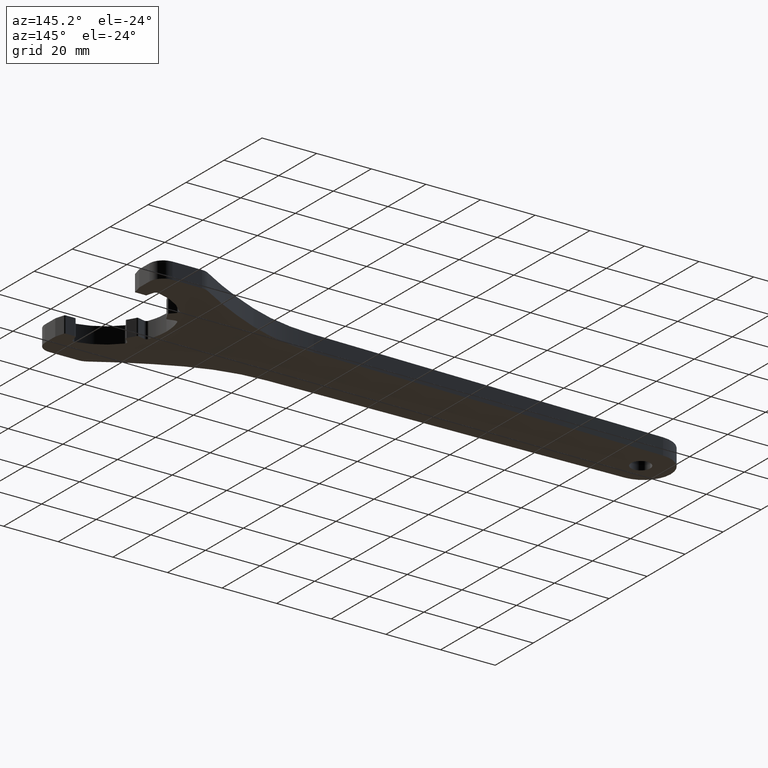
[diagram: clean part render]
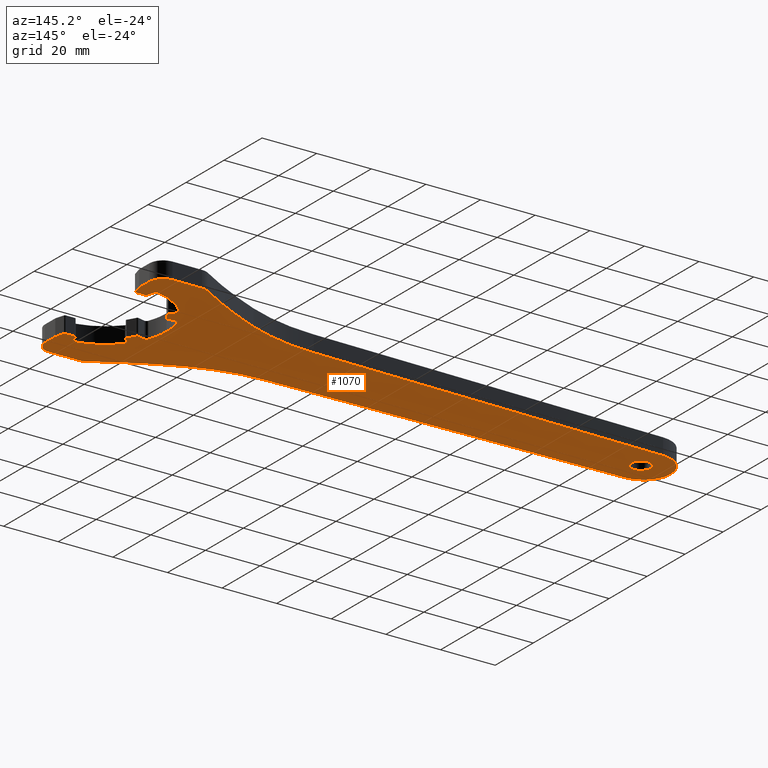
[diagram: same view with one face highlighted and labeled with its STEP entity id]
A machine part, auxiliary view. The second image highlights one B-rep face of the part: STEP entity #1070.
In plain terms, the highlighted planar face has unit normal (0, 0, 1).
Its self-contained STEP definition (entity closure, byte-faithful):
#5 = VERTEX_POINT ( 'NONE', #345 ) ;
#10 = CARTESIAN_POINT ( 'NONE',  ( -16.85463822303032800, -7.806910254947470500, -1.084202172485504400E-016 ) ) ;
#12 = FACE_OUTER_BOUND ( 'NONE', #1345, .T. ) ;
#13 = DIRECTION ( 'NONE',  ( -1.000000000000000000, -1.776356839400250500E-015, 0.0000000000000000000 ) ) ;
#14 = CARTESIAN_POINT ( 'NONE',  ( -17.41706044743177300, 7.573947341115692600, -1.084202172485504400E-016 ) ) ;
#16 = DIRECTION ( 'NONE',  ( -1.000000000000000000, 0.0000000000000000000, 0.0000000000000000000 ) ) ;
#22 = DIRECTION ( 'NONE',  ( -1.000000000000000000, 2.081668171172168900E-015, 0.0000000000000000000 ) ) ;
#29 = EDGE_CURVE ( 'NONE', #921, #215, #1693, .T. ) ;
#30 = ORIENTED_EDGE ( 'NONE', *, *, #222, .F. ) ;
#32 = AXIS2_PLACEMENT_3D ( 'NONE', #360, #251, #1190 ) ;
#34 = ORIENTED_EDGE ( 'NONE', *, *, #1051, .F. ) ;
#36 = ORIENTED_EDGE ( 'NONE', *, *, #29, .T. ) ;
#47 = VERTEX_POINT ( 'NONE', #505 ) ;
#48 = CARTESIAN_POINT ( 'NONE',  ( -15.41850356263618400, -31.72609176872342800, 0.0000000000000000000 ) ) ;
#61 = DIRECTION ( 'NONE',  ( 0.0000000000000000000, 0.0000000000000000000, -1.000000000000000000 ) ) ;
#62 = VERTEX_POINT ( 'NONE', #772 ) ;
#64 = LINE ( 'NONE', #158, #1060 ) ;
#73 = EDGE_CURVE ( 'NONE', #388, #825, #570, .T. ) ;
#77 = VERTEX_POINT ( 'NONE', #1583 ) ;
#79 = DIRECTION ( 'NONE',  ( -1.000000000000000000, 0.0000000000000000000, 0.0000000000000000000 ) ) ;
#80 = VECTOR ( 'NONE', #899, 1000.000000000000200 ) ;
#88 = AXIS2_PLACEMENT_3D ( 'NONE', #1068, #257, #1195 ) ;
#90 = CARTESIAN_POINT ( 'NONE',  ( -3.753369252000000600, -20.99335728599999800, 0.0000000000000000000 ) ) ;
#93 = LINE ( 'NONE', #779, #407 ) ;
#94 = DIRECTION ( 'NONE',  ( -1.000000000000000000, 6.938893903907229400E-016, 0.0000000000000000000 ) ) ;
#102 = DIRECTION ( 'NONE',  ( 0.0000000000000000000, 1.000000000000000000, 0.0000000000000000000 ) ) ;
#103 = VERTEX_POINT ( 'NONE', #1590 ) ;
#107 = CARTESIAN_POINT ( 'NONE',  ( -20.99797142334255200, -7.585942386358816200, 0.0000000000000000000 ) ) ;
#113 = AXIS2_PLACEMENT_3D ( 'NONE', #1649, #838, #22 ) ;
#117 = DIRECTION ( 'NONE',  ( 0.0000000000000000000, 0.0000000000000000000, -1.000000000000000000 ) ) ;
#122 = DIRECTION ( 'NONE',  ( 0.9998158079562803300, -0.01919245061815623800, 0.0000000000000000000 ) ) ;
#123 = DIRECTION ( 'NONE',  ( -1.000000000000000000, 0.0000000000000000000, 0.0000000000000000000 ) ) ;
#125 = CARTESIAN_POINT ( 'NONE',  ( -2.787443425350983400, 21.25217633103453000, 0.0000000000000000000 ) ) ;
#126 = LINE ( 'NONE', #1165, #80 ) ;
#132 = DIRECTION ( 'NONE',  ( -1.000000000000000000, 0.0000000000000000000, 0.0000000000000000000 ) ) ;
#135 = CARTESIAN_POINT ( 'NONE',  ( -16.85463822303032800, 7.806910254947469600, -1.084202172485504400E-016 ) ) ;
#136 = EDGE_CURVE ( 'NONE', #474, #212, #929, .T. ) ;
#137 = EDGE_CURVE ( 'NONE', #653, #47, #1244, .T. ) ;
#139 = CARTESIAN_POINT ( 'NONE',  ( -67.59248863315484400, -12.48555838861780600, 0.0000000000000000000 ) ) ;
#142 = DIRECTION ( 'NONE',  ( -1.000000000000000000, 0.0000000000000000000, 0.0000000000000000000 ) ) ;
#152 = EDGE_CURVE ( 'NONE', #1499, #1153, #174, .T. ) ;
#155 = AXIS2_PLACEMENT_3D ( 'NONE', #1753, #949, #142 ) ;
#156 = CARTESIAN_POINT ( 'NONE',  ( -68.93808457000000100, -82.58333333299998500, 0.0000000000000000000 ) ) ;
#158 = CARTESIAN_POINT ( 'NONE',  ( -15.26776102799999900, 11.29664313600000000, 0.0000000000000000000 ) ) ;
#162 = CARTESIAN_POINT ( 'NONE',  ( -102.6097512369999500, -18.50000002499999900, 0.0000000000000000000 ) ) ;
#166 = CIRCLE ( 'NONE', #852, 10.00000000000000900 ) ;
#174 = LINE ( 'NONE', #567, #489 ) ;
#180 = ORIENTED_EDGE ( 'NONE', *, *, #1516, .T. ) ;
#189 = CARTESIAN_POINT ( 'NONE',  ( -15.41850359531710200, 31.72609174802172700, 0.0000000000000000000 ) ) ;
#191 = ORIENTED_EDGE ( 'NONE', *, *, #804, .F. ) ;
#201 = EDGE_CURVE ( 'NONE', #1012, #1729, #1157, .T. ) ;
#202 = EDGE_CURVE ( 'NONE', #47, #879, #126, .T. ) ;
#205 = AXIS2_PLACEMENT_3D ( 'NONE', #1229, #287, #1237 ) ;
#207 = CARTESIAN_POINT ( 'NONE',  ( -1.979751236999999700, 27.50000000000000000, 0.0000000000000000000 ) ) ;
#212 = VERTEX_POINT ( 'NONE', #391 ) ;
#213 = AXIS2_PLACEMENT_3D ( 'NONE', #1196, #400, #1326 ) ;
#214 = DIRECTION ( 'NONE',  ( 0.0000000000000000000, 0.0000000000000000000, -1.000000000000000000 ) ) ;
#215 = VERTEX_POINT ( 'NONE', #524 ) ;
#222 = EDGE_CURVE ( 'NONE', #809, #278, #1125, .T. ) ;
#224 = EDGE_CURVE ( 'NONE', #1310, #1012, #1479, .T. ) ;
#229 = DIRECTION ( 'NONE',  ( -1.000000000000000000, 0.0000000000000000000, 0.0000000000000000000 ) ) ;
#230 = CARTESIAN_POINT ( 'NONE',  ( -17.01120287599999900, -13.04008498300000000, 0.0000000000000000000 ) ) ;
#231 = FACE_BOUND ( 'NONE', #1362, .T. ) ;
#235 = CARTESIAN_POINT ( 'NONE',  ( -12.74639795800000100, -32.50000000000000000, 0.0000000000000000000 ) ) ;
#251 = DIRECTION ( 'NONE',  ( 0.0000000000000000000, 0.0000000000000000000, -1.000000000000000000 ) ) ;
#256 = EDGE_CURVE ( 'NONE', #958, #1666, #1524, .T. ) ;
#257 = DIRECTION ( 'NONE',  ( 0.0000000000000000000, 0.0000000000000000000, -1.000000000000000000 ) ) ;
#259 = ORIENTED_EDGE ( 'NONE', *, *, #412, .F. ) ;
#261 = CIRCLE ( 'NONE', #113, 4.999999999999999100 ) ;
#272 = CARTESIAN_POINT ( 'NONE',  ( -67.59248863793996500, 12.48555838900116100, -2.168404344971008900E-016 ) ) ;
#278 = VERTEX_POINT ( 'NONE', #1578 ) ;
#279 = ORIENTED_EDGE ( 'NONE', *, *, #1615, .T. ) ;
#283 = DIRECTION ( 'NONE',  ( -1.000000000000000000, 0.0000000000000000000, 0.0000000000000000000 ) ) ;
#287 = DIRECTION ( 'NONE',  ( 0.0000000000000000000, 0.0000000000000000000, 1.000000000000000000 ) ) ;
#288 = CARTESIAN_POINT ( 'NONE',  ( -102.6097512369999700, 32.50000000000000000, 0.0000000000000000000 ) ) ;
#292 = EDGE_CURVE ( 'NONE', #750, #694, #713, .T. ) ;
#294 = AXIS2_PLACEMENT_3D ( 'NONE', #1104, #295, #1240 ) ;
#295 = DIRECTION ( 'NONE',  ( 0.0000000000000000000, 0.0000000000000000000, -1.000000000000000000 ) ) ;
#297 = CIRCLE ( 'NONE', #1542, 22.32624746300000500 ) ;
#299 = CARTESIAN_POINT ( 'NONE',  ( 3.020248762999999700, -22.12101768000000100, 0.0000000000000000000 ) ) ;
#302 = ORIENTED_EDGE ( 'NONE', *, *, #955, .F. ) ;
#305 = ORIENTED_EDGE ( 'NONE', *, *, #1043, .F. ) ;
#319 = ORIENTED_EDGE ( 'NONE', *, *, #73, .F. ) ;
#322 = CIRCLE ( 'NONE', #625, 22.32624746300000500 ) ;
#323 = CARTESIAN_POINT ( 'NONE',  ( -102.6097512369999700, -32.50000000000000000, 0.0000000000000000000 ) ) ;
#324 = EDGE_CURVE ( 'NONE', #847, #496, #166, .T. ) ;
#331 = ORIENTED_EDGE ( 'NONE', *, *, #1593, .F. ) ;
#336 = DIRECTION ( 'NONE',  ( -1.000000000000000000, 2.081668171172168100E-015, 0.0000000000000000000 ) ) ;
#339 = ORIENTED_EDGE ( 'NONE', *, *, #201, .F. ) ;
#340 = EDGE_CURVE ( 'NONE', #278, #1310, #1187, .T. ) ;
#342 = LINE ( 'NONE', #679, #1737 ) ;
#344 = EDGE_CURVE ( 'NONE', #1106, #750, #874, .T. ) ;
#345 = CARTESIAN_POINT ( 'NONE',  ( -15.26776102805069600, 11.29664313605069700, 2.168404344971008900E-016 ) ) ;
#347 = AXIS2_PLACEMENT_3D ( 'NONE', #624, #1576, #763 ) ;
#352 = EDGE_CURVE ( 'NONE', #921, #516, #790, .T. ) ;
#355 = VECTOR ( 'NONE', #1721, 1000.000000000000000 ) ;
#356 = AXIS2_PLACEMENT_3D ( 'NONE', #207, #1148, #336 ) ;
#360 = CARTESIAN_POINT ( 'NONE',  ( -3.753369252000000600, 20.99335728599999800, 0.0000000000000000000 ) ) ;
#362 = ORIENTED_EDGE ( 'NONE', *, *, #137, .F. ) ;
#363 = CARTESIAN_POINT ( 'NONE',  ( 1.666336506000000200, -18.50000001249999600, 0.0000000000000000000 ) ) ;
#371 = CARTESIAN_POINT ( 'NONE',  ( -1.979751236999999700, -27.50000000000000000, 0.0000000000000000000 ) ) ;
#378 = ORIENTED_EDGE ( 'NONE', *, *, #798, .F. ) ;
#382 = CARTESIAN_POINT ( 'NONE',  ( -2.149299419068149600, -18.87059047725433900, 0.0000000000000000000 ) ) ;
#388 = VERTEX_POINT ( 'NONE', #401 ) ;
#389 = CARTESIAN_POINT ( 'NONE',  ( -195.9797512373251600, 0.0000000000000000000, 0.0000000000000000000 ) ) ;
#391 = CARTESIAN_POINT ( 'NONE',  ( -12.74639795748724100, 32.50000000000000000, 0.0000000000000000000 ) ) ;
#395 = ORIENTED_EDGE ( 'NONE', *, *, #352, .F. ) ;
#398 = CARTESIAN_POINT ( 'NONE',  ( -206.9797512369999600, 0.0000000000000000000, 0.0000000000000000000 ) ) ;
#400 = DIRECTION ( 'NONE',  ( 0.0000000000000000000, 0.0000000000000000000, -1.000000000000000000 ) ) ;
#401 = CARTESIAN_POINT ( 'NONE',  ( -41.59610276938307300, 18.02386685593287300, 0.0000000000000000000 ) ) ;
#407 = VECTOR ( 'NONE', #102, 1000.000000000000000 ) ;
#408 = CIRCLE ( 'NONE', #427, 5.000000000000000900 ) ;
#412 = EDGE_CURVE ( 'NONE', #1337, #883, #1149, .T. ) ;
#427 = AXIS2_PLACEMENT_3D ( 'NONE', #371, #1302, #507 ) ;
#429 = CARTESIAN_POINT ( 'NONE',  ( -16.30409609500000200, -13.74719176499999700, 0.0000000000000000000 ) ) ;
#435 = CARTESIAN_POINT ( 'NONE',  ( -112.2756825459999800, 184.9114022759999900, 0.0000000000000000000 ) ) ;
#437 = VERTEX_POINT ( 'NONE', #135 ) ;
#440 = VECTOR ( 'NONE', #1471, 1000.000000000000000 ) ;
#443 = DIRECTION ( 'NONE',  ( -0.2588190450747938600, 0.9659258262964977000, 0.0000000000000000000 ) ) ;
#445 = ORIENTED_EDGE ( 'NONE', *, *, #152, .F. ) ;
#459 = EDGE_CURVE ( 'NONE', #437, #1297, #342, .T. ) ;
#474 = VERTEX_POINT ( 'NONE', #1604 ) ;
#475 = EDGE_CURVE ( 'NONE', #1300, #851, #1698, .T. ) ;
#485 = EDGE_CURVE ( 'NONE', #62, #553, #1372, .T. ) ;
#489 = VECTOR ( 'NONE', #1514, 1000.000000000000100 ) ;
#496 = VERTEX_POINT ( 'NONE', #398 ) ;
#502 = ORIENTED_EDGE ( 'NONE', *, *, #1556, .F. ) ;
#505 = CARTESIAN_POINT ( 'NONE',  ( -19.79864630072796700, 8.212091347927108500, -1.084202172485504400E-016 ) ) ;
#506 = DIRECTION ( 'NONE',  ( 0.7071067813893376900, 0.7071067809837572300, 0.0000000000000000000 ) ) ;
#507 = DIRECTION ( 'NONE',  ( -1.000000000000000000, 0.0000000000000000000, 0.0000000000000000000 ) ) ;
#514 = CARTESIAN_POINT ( 'NONE',  ( -68.93808457000000100, 82.58333333299998500, 0.0000000000000000000 ) ) ;
#516 = VERTEX_POINT ( 'NONE', #1474 ) ;
#523 = DIRECTION ( 'NONE',  ( 1.000000000000000000, 0.0000000000000000000, 0.0000000000000000000 ) ) ;
#524 = CARTESIAN_POINT ( 'NONE',  ( 2.149299419062789900, -18.87059047723433700, 0.0000000000000000000 ) ) ;
#543 = VERTEX_POINT ( 'NONE', #812 ) ;
#545 = CARTESIAN_POINT ( 'NONE',  ( -17.41706044700000400, -7.573947341000000200, 0.0000000000000000000 ) ) ;
#553 = VERTEX_POINT ( 'NONE', #139 ) ;
#555 = CIRCLE ( 'NONE', #1171, 0.5000000000000073300 ) ;
#557 = CARTESIAN_POINT ( 'NONE',  ( -112.2756825459999800, -184.9114022759999900, 0.0000000000000000000 ) ) ;
#563 = DIRECTION ( 'NONE',  ( -1.000000000000000000, 0.0000000000000000000, 0.0000000000000000000 ) ) ;
#567 = CARTESIAN_POINT ( 'NONE',  ( -2.149299418999999700, -18.87059047700000000, 0.0000000000000000000 ) ) ;
#570 = CIRCLE ( 'NONE', #1220, 70.11068877599998900 ) ;
#574 = AXIS2_PLACEMENT_3D ( 'NONE', #1710, #905, #94 ) ;
#577 = VECTOR ( 'NONE', #973, 1000.000000000000200 ) ;
#580 = ORIENTED_EDGE ( 'NONE', *, *, #1466, .F. ) ;
#581 = CARTESIAN_POINT ( 'NONE',  ( 3.020248762999999700, -27.50000000000000000, 0.0000000000000000000 ) ) ;
#584 = ORIENTED_EDGE ( 'NONE', *, *, #1621, .F. ) ;
#585 = EDGE_CURVE ( 'NONE', #1300, #719, #1252, .T. ) ;
#595 = ORIENTED_EDGE ( 'NONE', *, *, #324, .F. ) ;
#597 = AXIS2_PLACEMENT_3D ( 'NONE', #866, #61, #1008 ) ;
#603 = CARTESIAN_POINT ( 'NONE',  ( -192.4797512373251600, 0.0000000000000000000, 0.0000000000000000000 ) ) ;
#610 = CARTESIAN_POINT ( 'NONE',  ( 0.0000000000000000000, 0.0000000000000000000, 0.0000000000000000000 ) ) ;
#614 = LINE ( 'NONE', #1352, #577 ) ;
#617 = ORIENTED_EDGE ( 'NONE', *, *, #1421, .F. ) ;
#621 = VERTEX_POINT ( 'NONE', #107 ) ;
#623 = CARTESIAN_POINT ( 'NONE',  ( -15.62131441899999900, 10.94308974500000000, 0.0000000000000000000 ) ) ;
#624 = CARTESIAN_POINT ( 'NONE',  ( -196.9797512369999600, 0.0000000000000000000, 0.0000000000000000000 ) ) ;
#625 = AXIS2_PLACEMENT_3D ( 'NONE', #610, #1559, #749 ) ;
#635 = CARTESIAN_POINT ( 'NONE',  ( -195.9797512373251600, 0.0000000000000000000, 0.0000000000000000000 ) ) ;
#641 = DIRECTION ( 'NONE',  ( -1.000000000000000000, 0.0000000000000000000, 0.0000000000000000000 ) ) ;
#651 = CIRCLE ( 'NONE', #1635, 22.32624746300000500 ) ;
#653 = VERTEX_POINT ( 'NONE', #1336 ) ;
#676 = CARTESIAN_POINT ( 'NONE',  ( -197.1716757418076600, 9.998158079806030300, 0.0000000000000000000 ) ) ;
#678 = CIRCLE ( 'NONE', #1747, 3.500000000000003100 ) ;
#679 = CARTESIAN_POINT ( 'NONE',  ( -16.85463822300000200, 7.806910255000000000, 0.0000000000000000000 ) ) ;
#680 = CARTESIAN_POINT ( 'NONE',  ( -199.4797512373251600, 4.286263797015716400E-016, 0.0000000000000000000 ) ) ;
#683 = LINE ( 'NONE', #1654, #1044 ) ;
#685 = CARTESIAN_POINT ( 'NONE',  ( 0.0000000000000000000, 0.0000000000000000000, 0.0000000000000000000 ) ) ;
#688 = CARTESIAN_POINT ( 'NONE',  ( -19.79864630072796700, -8.212091347927108500, -1.084202172485504400E-016 ) ) ;
#692 = DIRECTION ( 'NONE',  ( -1.000000000000000000, 0.0000000000000000000, 0.0000000000000000000 ) ) ;
#694 = VERTEX_POINT ( 'NONE', #1088 ) ;
#713 = LINE ( 'NONE', #230, #1425 ) ;
#715 = VERTEX_POINT ( 'NONE', #680 ) ;
#719 = VERTEX_POINT ( 'NONE', #688 ) ;
#729 = VERTEX_POINT ( 'NONE', #1498 ) ;
#730 = ORIENTED_EDGE ( 'NONE', *, *, #475, .T. ) ;
#749 = DIRECTION ( 'NONE',  ( -1.000000000000000000, 0.0000000000000000000, 0.0000000000000000000 ) ) ;
#750 = VERTEX_POINT ( 'NONE', #1334 ) ;
#762 = DIRECTION ( 'NONE',  ( -1.000000000000000000, 0.0000000000000000000, 0.0000000000000000000 ) ) ;
#763 = DIRECTION ( 'NONE',  ( -1.000000000000000000, 0.0000000000000000000, 0.0000000000000000000 ) ) ;
#771 = DIRECTION ( 'NONE',  ( 1.000000000000000000, 0.0000000000000000000, 0.0000000000000000000 ) ) ;
#772 = CARTESIAN_POINT ( 'NONE',  ( -197.1716757430949100, -9.998158079998175300, -2.168404344971008900E-016 ) ) ;
#774 = EDGE_CURVE ( 'NONE', #5, #809, #64, .T. ) ;
#779 = CARTESIAN_POINT ( 'NONE',  ( 3.020248762999999700, 0.0000000000000000000, 0.0000000000000000000 ) ) ;
#788 = VERTEX_POINT ( 'NONE', #954 ) ;
#790 = LINE ( 'NONE', #162, #440 ) ;
#798 = EDGE_CURVE ( 'NONE', #1162, #653, #651, .T. ) ;
#799 = EDGE_CURVE ( 'NONE', #621, #1162, #297, .T. ) ;
#804 = EDGE_CURVE ( 'NONE', #543, #1106, #1655, .T. ) ;
#805 = VECTOR ( 'NONE', #1434, 1000.000000000000100 ) ;
#806 = DIRECTION ( 'NONE',  ( 0.0000000000000000000, 1.000000000000000000, 0.0000000000000000000 ) ) ;
#809 = VERTEX_POINT ( 'NONE', #1620 ) ;
#812 = CARTESIAN_POINT ( 'NONE',  ( -17.06860452913060300, -14.39180548892690200, 0.0000000000000000000 ) ) ;
#816 = LINE ( 'NONE', #1532, #1132 ) ;
#819 = AXIS2_PLACEMENT_3D ( 'NONE', #1023, #214, #1156 ) ;
#824 = DIRECTION ( 'NONE',  ( -0.0000000000000000000, -0.0000000000000000000, 1.000000000000000000 ) ) ;
#825 = VERTEX_POINT ( 'NONE', #272 ) ;
#826 = DIRECTION ( 'NONE',  ( -1.000000000000000000, 0.0000000000000000000, 0.0000000000000000000 ) ) ;
#827 = CARTESIAN_POINT ( 'NONE',  ( 3.020248763000000600, 27.49999999897448400, 0.0000000000000000000 ) ) ;
#829 = ORIENTED_EDGE ( 'NONE', *, *, #1510, .T. ) ;
#831 = DIRECTION ( 'NONE',  ( 0.0000000000000000000, 0.0000000000000000000, -1.000000000000000000 ) ) ;
#833 = PLANE ( 'NONE',  #205 ) ;
#836 = CARTESIAN_POINT ( 'NONE',  ( -15.18830171703032800, 10.69308974494747100, -1.084202172485504400E-016 ) ) ;
#838 = DIRECTION ( 'NONE',  ( -0.0000000000000000000, -0.0000000000000000000, 1.000000000000000000 ) ) ;
#841 = CARTESIAN_POINT ( 'NONE',  ( -17.41706044743177300, -7.573947341115692600, -1.084202172485504400E-016 ) ) ;
#846 = DIRECTION ( 'NONE',  ( 0.2588190450689664700, 0.9659258262980591200, 0.0000000000000000000 ) ) ;
#847 = VERTEX_POINT ( 'NONE', #676 ) ;
#851 = VERTEX_POINT ( 'NONE', #10 ) ;
#852 = AXIS2_PLACEMENT_3D ( 'NONE', #1633, #824, #13 ) ;
#864 = ORIENTED_EDGE ( 'NONE', *, *, #1003, .T. ) ;
#866 = CARTESIAN_POINT ( 'NONE',  ( -1.666336506000000200, -19.00000000000000000, 0.0000000000000000000 ) ) ;
#874 = CIRCLE ( 'NONE', #1205, 1.000000000000000900 ) ;
#877 = CARTESIAN_POINT ( 'NONE',  ( -15.18830171703032800, -10.69308974494747100, -1.084202172485504400E-016 ) ) ;
#879 = VERTEX_POINT ( 'NONE', #14 ) ;
#883 = VERTEX_POINT ( 'NONE', #827 ) ;
#890 = DIRECTION ( 'NONE',  ( 0.0000000000000000000, 0.0000000000000000000, -1.000000000000000000 ) ) ;
#893 = ORIENTED_EDGE ( 'NONE', *, *, #1433, .T. ) ;
#897 = CIRCLE ( 'NONE', #347, 10.00000000000000900 ) ;
#899 = DIRECTION ( 'NONE',  ( 0.9659258262165385500, -0.2588190453732052100, 0.0000000000000000000 ) ) ;
#905 = DIRECTION ( 'NONE',  ( -0.0000000000000000000, -0.0000000000000000000, 1.000000000000000000 ) ) ;
#906 = CARTESIAN_POINT ( 'NONE',  ( -2.787443424999999800, 21.25217633099999800, 0.0000000000000000000 ) ) ;
#912 = VERTEX_POINT ( 'NONE', #1168 ) ;
#920 = EDGE_CURVE ( 'NONE', #825, #847, #1525, .T. ) ;
#921 = VERTEX_POINT ( 'NONE', #363 ) ;
#925 = CARTESIAN_POINT ( 'NONE',  ( -15.62131441899999900, -10.94308974500000000, 0.0000000000000000000 ) ) ;
#927 = EDGE_CURVE ( 'NONE', #77, #1203, #408, .T. ) ;
#929 = LINE ( 'NONE', #288, #1560 ) ;
#931 = DIRECTION ( 'NONE',  ( 0.0000000000000000000, 0.0000000000000000000, -1.000000000000000000 ) ) ;
#935 = ORIENTED_EDGE ( 'NONE', *, *, #1528, .F. ) ;
#938 = LINE ( 'NONE', #299, #1661 ) ;
#940 = DIRECTION ( 'NONE',  ( 0.0000000000000000000, 0.0000000000000000000, -1.000000000000000000 ) ) ;
#944 = ORIENTED_EDGE ( 'NONE', *, *, #256, .F. ) ;
#949 = DIRECTION ( 'NONE',  ( 0.0000000000000000000, 0.0000000000000000000, -1.000000000000000000 ) ) ;
#954 = CARTESIAN_POINT ( 'NONE',  ( -41.59610270108135700, -18.02386688529592000, 0.0000000000000000000 ) ) ;
#955 = EDGE_CURVE ( 'NONE', #1729, #729, #1427, .T. ) ;
#958 = VERTEX_POINT ( 'NONE', #48 ) ;
#961 = CIRCLE ( 'NONE', #819, 0.9999999999999974500 ) ;
#973 = DIRECTION ( 'NONE',  ( -0.5000000001167814700, 0.8660254037170148600, 0.0000000000000000000 ) ) ;
#974 = DIRECTION ( 'NONE',  ( -1.000000000000000000, -0.0000000000000000000, -0.0000000000000000000 ) ) ;
#986 = VECTOR ( 'NONE', #122, 1000.000000000000100 ) ;
#999 = AXIS2_PLACEMENT_3D ( 'NONE', #90, #1038, #229 ) ;
#1003 = EDGE_CURVE ( 'NONE', #1499, #516, #1341, .T. ) ;
#1008 = DIRECTION ( 'NONE',  ( -1.000000000000000000, 0.0000000000000000000, 0.0000000000000000000 ) ) ;
#1012 = VERTEX_POINT ( 'NONE', #1680 ) ;
#1016 = AXIS2_PLACEMENT_3D ( 'NONE', #435, #1359, #563 ) ;
#1023 = CARTESIAN_POINT ( 'NONE',  ( -20.05746534600000800, -7.246165521000000000, 0.0000000000000000000 ) ) ;
#1025 = AXIS2_PLACEMENT_3D ( 'NONE', #1644, #831, #16 ) ;
#1036 = AXIS2_PLACEMENT_3D ( 'NONE', #1497, #1212, #1403 ) ;
#1037 = ORIENTED_EDGE ( 'NONE', *, *, #920, .F. ) ;
#1038 = DIRECTION ( 'NONE',  ( 0.0000000000000000000, 0.0000000000000000000, -1.000000000000000000 ) ) ;
#1040 = ORIENTED_EDGE ( 'NONE', *, *, #459, .F. ) ;
#1043 = EDGE_CURVE ( 'NONE', #553, #788, #1673, .T. ) ;
#1044 = VECTOR ( 'NONE', #846, 1000.000000000000100 ) ;
#1051 = EDGE_CURVE ( 'NONE', #788, #958, #1631, .T. ) ;
#1060 = VECTOR ( 'NONE', #1216, 1000.000000000000100 ) ;
#1064 = DIRECTION ( 'NONE',  ( -1.000000000000000000, 0.0000000000000000000, 0.0000000000000000000 ) ) ;
#1065 = ORIENTED_EDGE ( 'NONE', *, *, #224, .F. ) ;
#1068 = CARTESIAN_POINT ( 'NONE',  ( -17.28765092500000100, -8.056910255000001800, 0.0000000000000000000 ) ) ;
#1070 = ADVANCED_FACE ( 'NONE', ( #231, #12 ), #833, .F. ) ;
#1072 = ORIENTED_EDGE ( 'NONE', *, *, #1123, .F. ) ;
#1076 = EDGE_CURVE ( 'NONE', #212, #1230, #261, .T. ) ;
#1077 = EDGE_CURVE ( 'NONE', #437, #879, #1281, .T. ) ;
#1081 = AXIS2_PLACEMENT_3D ( 'NONE', #635, #1582, #771 ) ;
#1086 = CIRCLE ( 'NONE', #1668, 0.5000000000000073300 ) ;
#1088 = CARTESIAN_POINT ( 'NONE',  ( -15.26776102805069600, -11.29664313605069700, 2.168404344971008900E-016 ) ) ;
#1089 = EDGE_CURVE ( 'NONE', #1530, #851, #614, .T. ) ;
#1097 = DIRECTION ( 'NONE',  ( 0.0000000000000000000, 0.0000000000000000000, -1.000000000000000000 ) ) ;
#1104 = CARTESIAN_POINT ( 'NONE',  ( -17.28765092500000100, 8.056910255000001800, 0.0000000000000000000 ) ) ;
#1106 = VERTEX_POINT ( 'NONE', #1361 ) ;
#1110 = VECTOR ( 'NONE', #806, 1000.000000000000000 ) ;
#1121 = CARTESIAN_POINT ( 'NONE',  ( 3.020248763000002300, 22.12101768000002300, -2.168404344971008900E-016 ) ) ;
#1123 = EDGE_CURVE ( 'NONE', #103, #215, #938, .T. ) ;
#1125 = CIRCLE ( 'NONE', #1696, 1.000000000000000900 ) ;
#1132 = VECTOR ( 'NONE', #1259, 1000.000000000000000 ) ;
#1148 = DIRECTION ( 'NONE',  ( -0.0000000000000000000, -0.0000000000000000000, 1.000000000000000000 ) ) ;
#1149 = LINE ( 'NONE', #1744, #1110 ) ;
#1153 = VERTEX_POINT ( 'NONE', #1520 ) ;
#1156 = DIRECTION ( 'NONE',  ( -1.000000000000000000, 0.0000000000000000000, 0.0000000000000000000 ) ) ;
#1157 = CIRCLE ( 'NONE', #32, 1.000000000000000400 ) ;
#1162 = VERTEX_POINT ( 'NONE', #1243 ) ;
#1165 = CARTESIAN_POINT ( 'NONE',  ( -19.79864630099999400, 8.212091347999999500, 0.0000000000000000000 ) ) ;
#1168 = CARTESIAN_POINT ( 'NONE',  ( -3.929366895709706300, -21.97774787351585600, 0.0000000000000000000 ) ) ;
#1169 = CIRCLE ( 'NONE', #1081, 3.500000000000003100 ) ;
#1171 = AXIS2_PLACEMENT_3D ( 'NONE', #623, #1575, #762 ) ;
#1187 = CIRCLE ( 'NONE', #1025, 1.000000000000000900 ) ;
#1190 = DIRECTION ( 'NONE',  ( -1.000000000000000000, 0.0000000000000000000, 0.0000000000000000000 ) ) ;
#1195 = DIRECTION ( 'NONE',  ( -1.000000000000000000, 0.0000000000000000000, 0.0000000000000000000 ) ) ;
#1196 = CARTESIAN_POINT ( 'NONE',  ( 0.0000000000000000000, 0.0000000000000000000, 0.0000000000000000000 ) ) ;
#1201 = ORIENTED_EDGE ( 'NONE', *, *, #1282, .F. ) ;
#1203 = VERTEX_POINT ( 'NONE', #581 ) ;
#1205 = AXIS2_PLACEMENT_3D ( 'NONE', #429, #1355, #1447 ) ;
#1212 = DIRECTION ( 'NONE',  ( 0.0000000000000000000, 0.0000000000000000000, -1.000000000000000000 ) ) ;
#1216 = DIRECTION ( 'NONE',  ( -0.7071067813893376900, 0.7071067809837572300, 0.0000000000000000000 ) ) ;
#1220 = AXIS2_PLACEMENT_3D ( 'NONE', #514, #1452, #641 ) ;
#1226 = ORIENTED_EDGE ( 'NONE', *, *, #292, .F. ) ;
#1227 = DIRECTION ( 'NONE',  ( 0.5000000001167814700, 0.8660254037170148600, 0.0000000000000000000 ) ) ;
#1229 = CARTESIAN_POINT ( 'NONE',  ( -208.2397512369999500, -32.50000000000000000, 0.0000000000000000000 ) ) ;
#1230 = VERTEX_POINT ( 'NONE', #189 ) ;
#1234 = EDGE_CURVE ( 'NONE', #729, #1420, #816, .T. ) ;
#1237 = DIRECTION ( 'NONE',  ( 1.000000000000000000, 0.0000000000000000000, 0.0000000000000000000 ) ) ;
#1240 = DIRECTION ( 'NONE',  ( -1.000000000000000000, 0.0000000000000000000, 0.0000000000000000000 ) ) ;
#1243 = CARTESIAN_POINT ( 'NONE',  ( -22.32624746300000500, 0.0000000000000000000, 0.0000000000000000000 ) ) ;
#1244 = CIRCLE ( 'NONE', #1494, 0.9999999999999974500 ) ;
#1252 = LINE ( 'NONE', #545, #1572 ) ;
#1259 = DIRECTION ( 'NONE',  ( 1.000000000000000000, 0.0000000000000000000, 0.0000000000000000000 ) ) ;
#1261 = DIRECTION ( 'NONE',  ( 1.000000000000000000, 0.0000000000000000000, 0.0000000000000000000 ) ) ;
#1271 = LINE ( 'NONE', #323, #1645 ) ;
#1281 = CIRCLE ( 'NONE', #294, 0.5000000000000004400 ) ;
#1282 = EDGE_CURVE ( 'NONE', #1230, #388, #1436, .T. ) ;
#1286 = ORIENTED_EDGE ( 'NONE', *, *, #1396, .F. ) ;
#1292 = CARTESIAN_POINT ( 'NONE',  ( -197.1716757429999500, 9.998158079999997800, 0.0000000000000000000 ) ) ;
#1297 = VERTEX_POINT ( 'NONE', #836 ) ;
#1300 = VERTEX_POINT ( 'NONE', #841 ) ;
#1301 = ORIENTED_EDGE ( 'NONE', *, *, #774, .F. ) ;
#1302 = DIRECTION ( 'NONE',  ( -0.0000000000000000000, -0.0000000000000000000, 1.000000000000000000 ) ) ;
#1309 = EDGE_CURVE ( 'NONE', #1420, #1337, #683, .T. ) ;
#1310 = VERTEX_POINT ( 'NONE', #1518 ) ;
#1313 = AXIS2_PLACEMENT_3D ( 'NONE', #557, #1500, #692 ) ;
#1322 = DIRECTION ( 'NONE',  ( 0.0000000000000000000, 0.0000000000000000000, 1.000000000000000000 ) ) ;
#1326 = DIRECTION ( 'NONE',  ( -1.000000000000000000, 0.0000000000000000000, 0.0000000000000000000 ) ) ;
#1334 = CARTESIAN_POINT ( 'NONE',  ( -17.01120287614860200, -13.04008498314860500, 2.168404344971008900E-016 ) ) ;
#1336 = CARTESIAN_POINT ( 'NONE',  ( -20.99797142402372400, 7.585942384473338700, 0.0000000000000000000 ) ) ;
#1337 = VERTEX_POINT ( 'NONE', #1121 ) ;
#1338 = DIRECTION ( 'NONE',  ( -0.9659258262165385500, -0.2588190453732052100, 0.0000000000000000000 ) ) ;
#1341 = CIRCLE ( 'NONE', #597, 0.5000000000000004400 ) ;
#1345 = EDGE_LOOP ( 'NONE', ( #1201, #1610, #1660, #935, #259, #1697, #1371, #302, #339, #1065, #1640, #30, #1301, #279, #1040, #1711, #1473, #362, #378, #1690, #331, #1723, #730, #1399, #829, #1226, #1501, #191, #502, #584, #445, #864, #395, #36, #1072, #580, #1618, #1286, #944, #34, #305, #1415, #617, #595, #1037, #319 ) ) ;
#1352 = CARTESIAN_POINT ( 'NONE',  ( -15.18830171699999800, -10.69308974500000000, 0.0000000000000000000 ) ) ;
#1355 = DIRECTION ( 'NONE',  ( 0.0000000000000000000, 0.0000000000000000000, -1.000000000000000000 ) ) ;
#1359 = DIRECTION ( 'NONE',  ( 0.0000000000000000000, 0.0000000000000000000, -1.000000000000000000 ) ) ;
#1361 = CARTESIAN_POINT ( 'NONE',  ( -17.30409609500000200, -13.74719176499999700, 0.0000000000000000000 ) ) ;
#1362 = EDGE_LOOP ( 'NONE', ( #893, #180 ) ) ;
#1371 = ORIENTED_EDGE ( 'NONE', *, *, #1234, .F. ) ;
#1372 = LINE ( 'NONE', #1734, #986 ) ;
#1396 = EDGE_CURVE ( 'NONE', #1666, #77, #1271, .T. ) ;
#1399 = ORIENTED_EDGE ( 'NONE', *, *, #1089, .F. ) ;
#1403 = DIRECTION ( 'NONE',  ( -1.000000000000000000, 0.0000000000000000000, 0.0000000000000000000 ) ) ;
#1415 = ORIENTED_EDGE ( 'NONE', *, *, #485, .F. ) ;
#1420 = VERTEX_POINT ( 'NONE', #1703 ) ;
#1421 = EDGE_CURVE ( 'NONE', #496, #62, #897, .T. ) ;
#1425 = VECTOR ( 'NONE', #506, 1000.000000000000100 ) ;
#1427 = LINE ( 'NONE', #906, #355 ) ;
#1433 = EDGE_CURVE ( 'NONE', #1552, #715, #1169, .T. ) ;
#1434 = DIRECTION ( 'NONE',  ( -0.9998158079562803300, -0.01919245061815623800, -0.0000000000000000000 ) ) ;
#1436 = CIRCLE ( 'NONE', #1016, 181.2375581270000600 ) ;
#1447 = DIRECTION ( 'NONE',  ( -1.000000000000000000, 0.0000000000000000000, 0.0000000000000000000 ) ) ;
#1452 = DIRECTION ( 'NONE',  ( 0.0000000000000000000, 0.0000000000000000000, -1.000000000000000000 ) ) ;
#1466 = EDGE_CURVE ( 'NONE', #1203, #103, #93, .T. ) ;
#1471 = DIRECTION ( 'NONE',  ( -1.000000000000000000, -0.0000000000000000000, -0.0000000000000000000 ) ) ;
#1473 = ORIENTED_EDGE ( 'NONE', *, *, #202, .F. ) ;
#1474 = CARTESIAN_POINT ( 'NONE',  ( -1.666336506000000200, -18.50000001249999600, 0.0000000000000000000 ) ) ;
#1479 = CIRCLE ( 'NONE', #213, 22.32624746300000500 ) ;
#1494 = AXIS2_PLACEMENT_3D ( 'NONE', #1699, #890, #79 ) ;
#1497 = CARTESIAN_POINT ( 'NONE',  ( 1.666336506000000200, -19.00000000000000000, 0.0000000000000000000 ) ) ;
#1498 = CARTESIAN_POINT ( 'NONE',  ( -2.050000003349365900, 18.50000001249999600, 0.0000000000000000000 ) ) ;
#1499 = VERTEX_POINT ( 'NONE', #382 ) ;
#1500 = DIRECTION ( 'NONE',  ( 0.0000000000000000000, 0.0000000000000000000, -1.000000000000000000 ) ) ;
#1501 = ORIENTED_EDGE ( 'NONE', *, *, #344, .F. ) ;
#1508 = AXIS2_PLACEMENT_3D ( 'NONE', #156, #1097, #283 ) ;
#1510 = EDGE_CURVE ( 'NONE', #1530, #694, #1086, .T. ) ;
#1514 = DIRECTION ( 'NONE',  ( -0.2588190449947925800, -0.9659258263179338900, 0.0000000000000000000 ) ) ;
#1516 = EDGE_CURVE ( 'NONE', #715, #1552, #678, .T. ) ;
#1518 = CARTESIAN_POINT ( 'NONE',  ( -17.06860453101466700, 14.39180548752101900, 0.0000000000000000000 ) ) ;
#1520 = CARTESIAN_POINT ( 'NONE',  ( -2.787443425022194000, -21.25217633108282900, 0.0000000000000000000 ) ) ;
#1524 = CIRCLE ( 'NONE', #574, 4.999999999999999100 ) ;
#1525 = LINE ( 'NONE', #1292, #805 ) ;
#1528 = EDGE_CURVE ( 'NONE', #883, #474, #1712, .T. ) ;
#1530 = VERTEX_POINT ( 'NONE', #877 ) ;
#1532 = CARTESIAN_POINT ( 'NONE',  ( -102.6097512369999700, 18.50000002499999900, 0.0000000000000000000 ) ) ;
#1542 = AXIS2_PLACEMENT_3D ( 'NONE', #1743, #940, #132 ) ;
#1552 = VERTEX_POINT ( 'NONE', #603 ) ;
#1556 = EDGE_CURVE ( 'NONE', #912, #543, #322, .T. ) ;
#1559 = DIRECTION ( 'NONE',  ( 0.0000000000000000000, 0.0000000000000000000, -1.000000000000000000 ) ) ;
#1560 = VECTOR ( 'NONE', #974, 1000.000000000000000 ) ;
#1572 = VECTOR ( 'NONE', #1338, 1000.000000000000200 ) ;
#1575 = DIRECTION ( 'NONE',  ( 0.0000000000000000000, 0.0000000000000000000, -1.000000000000000000 ) ) ;
#1576 = DIRECTION ( 'NONE',  ( -0.0000000000000000000, -0.0000000000000000000, 1.000000000000000000 ) ) ;
#1578 = CARTESIAN_POINT ( 'NONE',  ( -17.30409609500000200, 13.74719176499999700, 0.0000000000000000000 ) ) ;
#1582 = DIRECTION ( 'NONE',  ( 0.0000000000000000000, 0.0000000000000000000, 1.000000000000000000 ) ) ;
#1583 = CARTESIAN_POINT ( 'NONE',  ( -1.979751236038273200, -32.50000000000000000, 0.0000000000000000000 ) ) ;
#1590 = CARTESIAN_POINT ( 'NONE',  ( 3.020248762999999700, -22.12101768000000100, 0.0000000000000000000 ) ) ;
#1593 = EDGE_CURVE ( 'NONE', #719, #621, #961, .T. ) ;
#1604 = CARTESIAN_POINT ( 'NONE',  ( -1.979751237000000800, 32.50000000000000000, 0.0000000000000000000 ) ) ;
#1610 = ORIENTED_EDGE ( 'NONE', *, *, #1076, .F. ) ;
#1615 = EDGE_CURVE ( 'NONE', #5, #1297, #555, .T. ) ;
#1618 = ORIENTED_EDGE ( 'NONE', *, *, #927, .F. ) ;
#1620 = CARTESIAN_POINT ( 'NONE',  ( -17.01120287631890100, 13.04008498363235300, 0.0000000000000000000 ) ) ;
#1621 = EDGE_CURVE ( 'NONE', #1153, #912, #1641, .T. ) ;
#1631 = CIRCLE ( 'NONE', #1313, 181.2375581270000600 ) ;
#1633 = CARTESIAN_POINT ( 'NONE',  ( -196.9797512369999600, 0.0000000000000000000, 0.0000000000000000000 ) ) ;
#1635 = AXIS2_PLACEMENT_3D ( 'NONE', #685, #1637, #826 ) ;
#1637 = DIRECTION ( 'NONE',  ( 0.0000000000000000000, 0.0000000000000000000, -1.000000000000000000 ) ) ;
#1640 = ORIENTED_EDGE ( 'NONE', *, *, #340, .F. ) ;
#1641 = CIRCLE ( 'NONE', #999, 1.000000000000000400 ) ;
#1644 = CARTESIAN_POINT ( 'NONE',  ( -16.30409609500000200, 13.74719176499999700, 0.0000000000000000000 ) ) ;
#1645 = VECTOR ( 'NONE', #1261, 1000.000000000000000 ) ;
#1649 = CARTESIAN_POINT ( 'NONE',  ( -12.74639795799999900, 27.50000000000000000, 0.0000000000000000000 ) ) ;
#1654 = CARTESIAN_POINT ( 'NONE',  ( 2.049999999999999800, 18.50000000000000000, 0.0000000000000000000 ) ) ;
#1655 = CIRCLE ( 'NONE', #155, 1.000000000000000900 ) ;
#1660 = ORIENTED_EDGE ( 'NONE', *, *, #136, .F. ) ;
#1661 = VECTOR ( 'NONE', #443, 1000.000000000000000 ) ;
#1666 = VERTEX_POINT ( 'NONE', #235 ) ;
#1668 = AXIS2_PLACEMENT_3D ( 'NONE', #925, #117, #1064 ) ;
#1673 = CIRCLE ( 'NONE', #1508, 70.11068877599998900 ) ;
#1680 = CARTESIAN_POINT ( 'NONE',  ( -3.929366897628695300, 21.97774787285844400, 0.0000000000000000000 ) ) ;
#1690 = ORIENTED_EDGE ( 'NONE', *, *, #799, .F. ) ;
#1693 = CIRCLE ( 'NONE', #1036, 0.5000000000000000000 ) ;
#1696 = AXIS2_PLACEMENT_3D ( 'NONE', #1736, #931, #123 ) ;
#1697 = ORIENTED_EDGE ( 'NONE', *, *, #1309, .F. ) ;
#1698 = CIRCLE ( 'NONE', #88, 0.5000000000000004400 ) ;
#1699 = CARTESIAN_POINT ( 'NONE',  ( -20.05746534600000800, 7.246165521000000000, 0.0000000000000000000 ) ) ;
#1703 = CARTESIAN_POINT ( 'NONE',  ( 2.050000003349365900, 18.50000001249999600, -2.168404344971008900E-016 ) ) ;
#1710 = CARTESIAN_POINT ( 'NONE',  ( -12.74639795799999900, -27.50000000000000000, 0.0000000000000000000 ) ) ;
#1711 = ORIENTED_EDGE ( 'NONE', *, *, #1077, .T. ) ;
#1712 = CIRCLE ( 'NONE', #356, 5.000000000000000900 ) ;
#1721 = DIRECTION ( 'NONE',  ( 0.2588190449978979800, -0.9659258263171018900, 0.0000000000000000000 ) ) ;
#1723 = ORIENTED_EDGE ( 'NONE', *, *, #585, .F. ) ;
#1729 = VERTEX_POINT ( 'NONE', #125 ) ;
#1734 = CARTESIAN_POINT ( 'NONE',  ( -197.1716757429999500, -9.998158079999997800, 0.0000000000000000000 ) ) ;
#1736 = CARTESIAN_POINT ( 'NONE',  ( -16.30409609500000200, 13.74719176499999700, 0.0000000000000000000 ) ) ;
#1737 = VECTOR ( 'NONE', #1227, 1000.000000000000200 ) ;
#1743 = CARTESIAN_POINT ( 'NONE',  ( 0.0000000000000000000, 0.0000000000000000000, 0.0000000000000000000 ) ) ;
#1744 = CARTESIAN_POINT ( 'NONE',  ( 3.020248762999999700, 0.0000000000000000000, 0.0000000000000000000 ) ) ;
#1747 = AXIS2_PLACEMENT_3D ( 'NONE', #389, #1322, #523 ) ;
#1753 = CARTESIAN_POINT ( 'NONE',  ( -16.30409609500000200, -13.74719176499999700, 0.0000000000000000000 ) ) ;